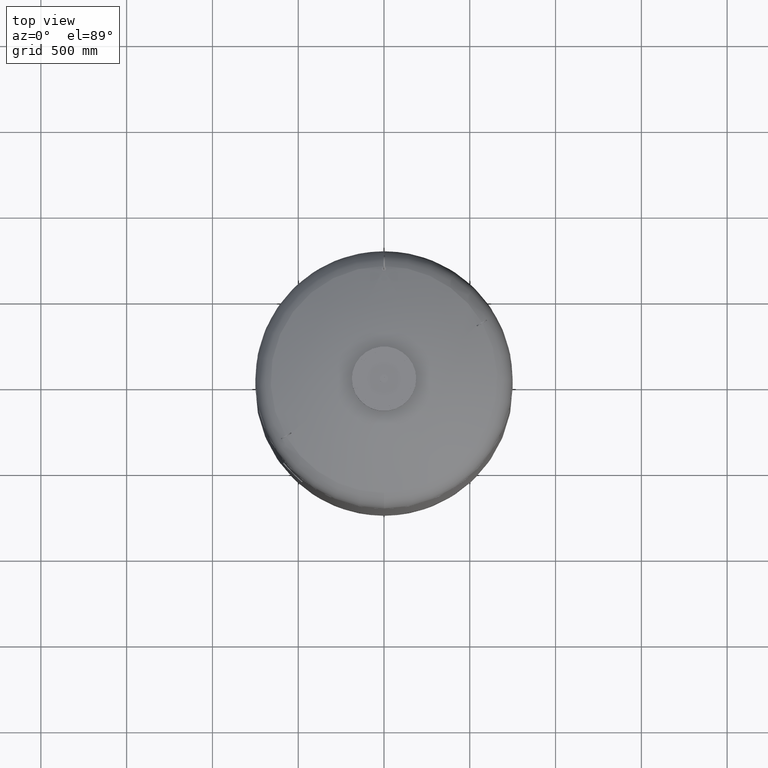
[diagram: clean part render]
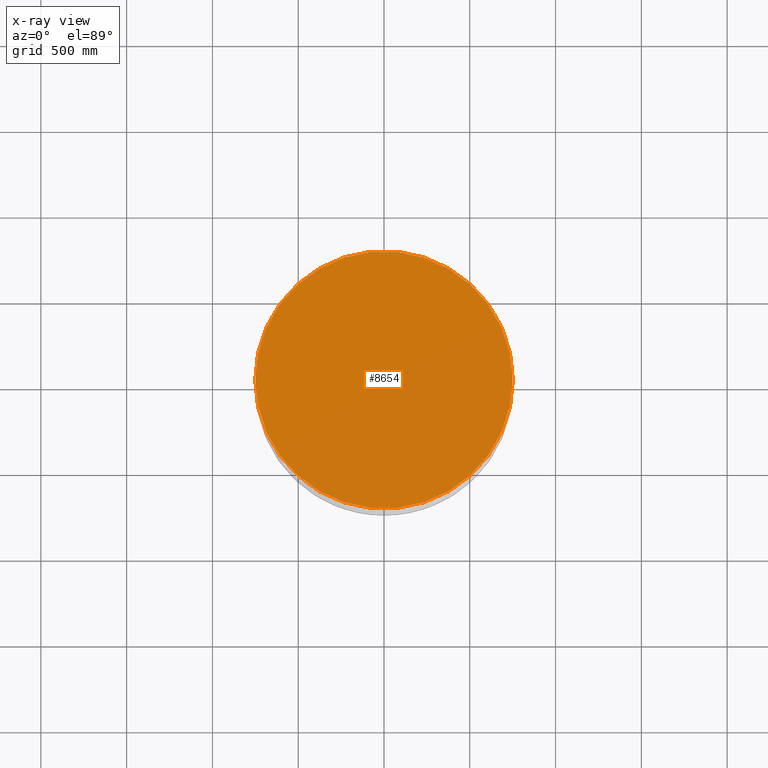
[diagram: x-ray — body ghosted, one internal face saturated and labeled with its STEP entity id]
A machine part, top view, then the same camera in x-ray: the body is ghosted and one INTERNAL B-rep face — a face not visible from any outside direction — is saturated and labeled: STEP entity #8654.
In plain terms, the highlighted planar face has unit normal (0, 0, 1).
Its self-contained STEP definition (entity closure, byte-faithful):
#8444=CARTESIAN_POINT('',(750.0,0.0,3180.0));
#8445=VERTEX_POINT('',#8444);
#8454=CARTESIAN_POINT('',(-750.000000000000230,-9.184548E-014,3180.0));
#8455=VERTEX_POINT('',#8454);
#8456=CARTESIAN_POINT('',(1.668796E-014,0.0,3180.0));
#8457=DIRECTION('',(0.0,0.0,1.0));
#8458=DIRECTION('',(1.0,0.0,0.0));
#8459=AXIS2_PLACEMENT_3D('',#8456,#8457,#8458);
#8460=CIRCLE('',#8459,750.0);
#8461=EDGE_CURVE('',#8455,#8445,#8460,.T.);
#8635=CARTESIAN_POINT('',(1.668796E-014,0.0,3180.0));
#8636=DIRECTION('',(0.0,0.0,1.0));
#8637=DIRECTION('',(1.0,0.0,0.0));
#8638=AXIS2_PLACEMENT_3D('',#8635,#8636,#8637);
#8639=CIRCLE('',#8638,750.0);
#8640=EDGE_CURVE('',#8445,#8455,#8639,.T.);
#8645=CARTESIAN_POINT('',(375.0,0.0,3180.0));
#8646=DIRECTION('',(0.0,0.0,1.0));
#8647=DIRECTION('',(1.0,0.0,0.0));
#8648=AXIS2_PLACEMENT_3D('',#8645,#8646,#8647);
#8649=PLANE('',#8648);
#8650=ORIENTED_EDGE('',*,*,#8640,.T.);
#8651=ORIENTED_EDGE('',*,*,#8461,.T.);
#8652=EDGE_LOOP('',(#8650,#8651));
#8653=FACE_OUTER_BOUND('',#8652,.T.);
#8654=ADVANCED_FACE('',(#8653),#8649,.T.);